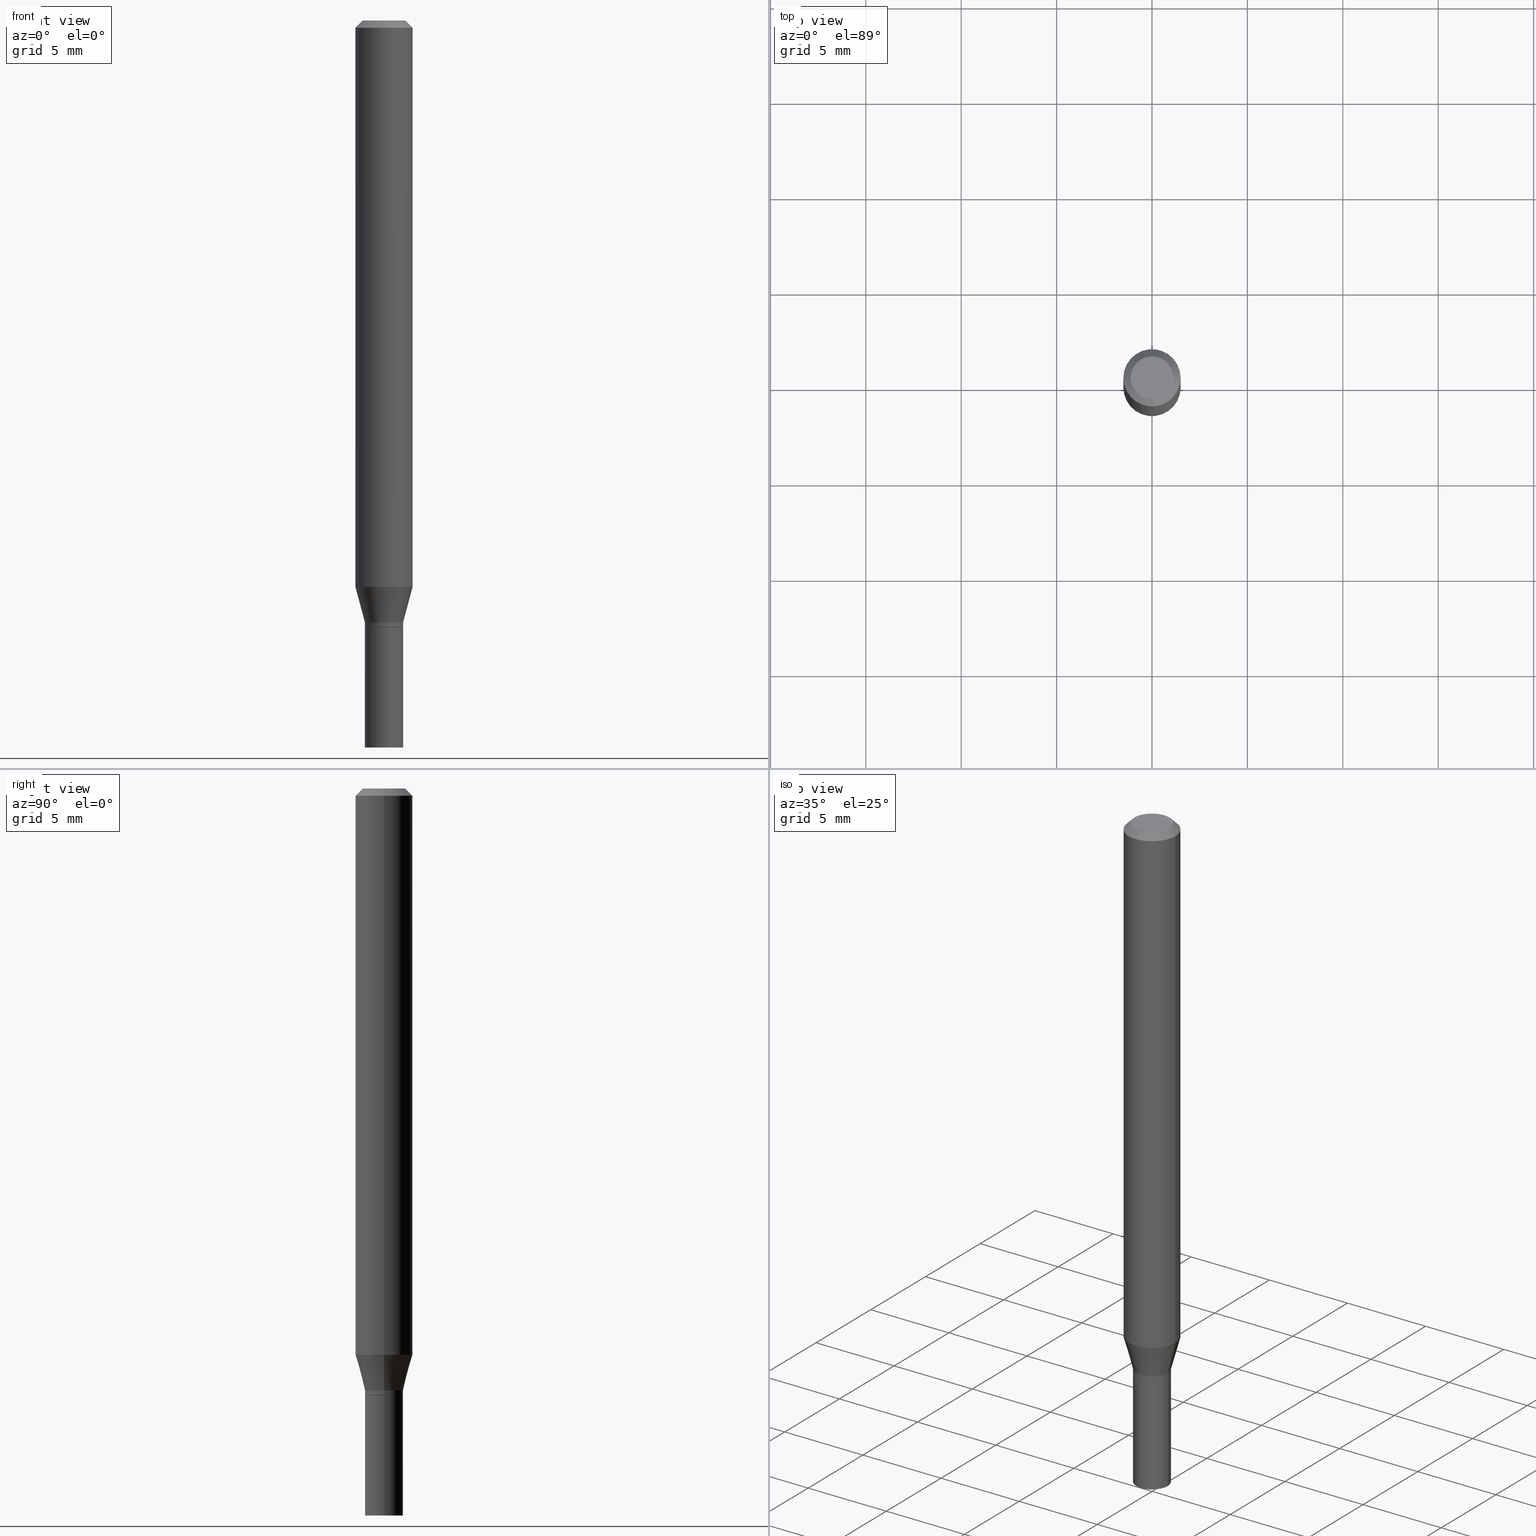
[diagram: canonical four-view strip — front | top / right | iso, engineering-drawing reading convention]
A machine part, canonical four-view strip (front | top / right | iso — engineering-drawing reading convention). The complete STEP part file that produces these views, byte-faithful:
ISO-10303-21;
HEADER;
FILE_DESCRIPTION (( 'STEP AP203' ),
    '1' );
FILE_NAME ('40113.STEP',
    '2024-03-12T19:08:55',
    ( '' ),
    ( '' ),
    'SwSTEP 2.0',
    'SolidWorks 2023',
    '' );
FILE_SCHEMA (( 'CONFIG_CONTROL_DESIGN' ));
ENDSEC;

DATA;
#1 = CARTESIAN_POINT ( 'NONE',  ( -8.641182519006289553E-45, 1.233731848647591164E-30, 3.533548453838711334E-16 ) ) ;
#2 = MANIFOLD_SOLID_BREP ( 'Body-Move/Copy2[2]', #460 ) ;
#3 = AXIS2_PLACEMENT_3D ( 'NONE', #84, #232, #154 ) ;
#4 = DIRECTION ( 'NONE',  ( -2.445468806185136597E-29, 3.491481338843145583E-15, 1.000000000000000000 ) ) ;
#5 = DIRECTION ( 'NONE',  ( -0.7071067811865396902, 2.468850131082174625E-15, -0.7071067811865553443 ) ) ;
#6 = ORIENTED_EDGE ( 'NONE', *, *, #67, .F. ) ;
#7 = CARTESIAN_POINT ( 'NONE',  ( 3.668203209277705088E-31, -5.237222008264718399E-17, -0.01499999999999999944 ) ) ;
#8 = EDGE_LOOP ( 'NONE', ( #143, #316 ) ) ;
#9 = LINE ( 'NONE', #157, #87 ) ;
#10 = CONICAL_SURFACE ( 'NONE', #176, 0.03934999999999992670, 0.2617993877991502960 ) ;
#11 = CARTESIAN_POINT ( 'NONE',  ( 0.03934999999999992670, -4.611199404210140965E-15, -1.241999999999999993 ) ) ;
#12 = CARTESIAN_POINT ( 'NONE',  ( -0.03935000000000000303, -4.524679755726570119E-15, -1.252000000000000224 ) ) ;
#13 = EDGE_CURVE ( 'NONE', #134, #384, #282, .T. ) ;
#14 = DIRECTION ( 'NONE',  ( 1.000000000000000000, -6.982962677686269077E-15, 0.000000000000000000 ) ) ;
#15 = CYLINDRICAL_SURFACE ( 'NONE', #352, 0.03935000000000000303 ) ;
#16 = DIRECTION ( 'NONE',  ( -2.445468806185136877E-29, 3.491481338843145188E-15, 1.000000000000000000 ) ) ;
#17 = EDGE_CURVE ( 'NONE', #24, #422, #153, .T. ) ;
#18 = CIRCLE ( 'NONE', #454, 0.04404999999999999888 ) ;
#19 = ORIENTED_EDGE ( 'NONE', *, *, #370, .F. ) ;
#20 = DIRECTION ( 'NONE',  ( 0.000000000000000000, 0.000000000000000000, 1.000000000000000000 ) ) ;
#21 = ADVANCED_FACE ( 'NONE', ( #45 ), #217, .T. ) ;
#22 = ADVANCED_FACE ( 'NONE', ( #288 ), #393, .F. ) ;
#23 = PERSON_AND_ORGANIZATION_ROLE ( 'creator' ) ;
#24 = VERTEX_POINT ( 'NONE', #181 ) ;
#25 = ORIENTED_EDGE ( 'NONE', *, *, #103, .F. ) ;
#26 = MECHANICAL_CONTEXT ( 'NONE', #420, 'mechanical' ) ;
#27 = ORIENTED_EDGE ( 'NONE', *, *, #399, .T. ) ;
#28 = COORDINATED_UNIVERSAL_TIME_OFFSET ( 5, 0, .BEHIND. ) ;
#29 = SECURITY_CLASSIFICATION ( '', '', #277 ) ;
#30 = ADVANCED_FACE ( 'NONE', ( #433 ), #279, .T. ) ;
#31 = VERTEX_POINT ( 'NONE', #436 ) ;
#32 = ORIENTED_EDGE ( 'NONE', *, *, #314, .T. ) ;
#33 = PRODUCT ( '40113', '40113', '', ( #26 ) ) ;
#34 = DIRECTION ( 'NONE',  ( 2.445468806185136597E-29, -3.491481338843145583E-15, -1.000000000000000000 ) ) ;
#35 = CIRCLE ( 'NONE', #102, 0.05904999999999999832 ) ;
#36 = LINE ( 'NONE', #183, #205 ) ;
#37 = CARTESIAN_POINT ( 'NONE',  ( 3.061726945343791391E-29, -4.371334636231619274E-15, -1.252000000000000224 ) ) ;
#38 = SHAPE_DEFINITION_REPRESENTATION ( #428, #418 ) ;
#39 = DIRECTION ( 'NONE',  ( 1.000000000000000000, -6.982962677686270655E-15, 0.000000000000000000 ) ) ;
#40 = CARTESIAN_POINT ( 'NONE',  ( -0.05905000000000001914, 3.599717260347269535E-16, -0.01499999999999999944 ) ) ;
#41 = AXIS2_PLACEMENT_3D ( 'NONE', #447, #403, #14 ) ;
#42 = EDGE_CURVE ( 'NONE', #105, #392, #342, .T. ) ;
#43 = EDGE_CURVE ( 'NONE', #97, #384, #431, .T. ) ;
#44 = ADVANCED_FACE ( 'NONE', ( #363 ), #361, .F. ) ;
#45 = FACE_OUTER_BOUND ( 'NONE', #300, .T. ) ;
#46 = DIRECTION ( 'NONE',  ( 1.000000000000000000, -6.982962677686265922E-15, 4.876176775795935793E-29 ) ) ;
#47 = CARTESIAN_POINT ( 'NONE',  ( 3.037272257281939846E-29, -4.336419822843186836E-15, -1.241999999999999993 ) ) ;
#48 = ORIENTED_EDGE ( 'NONE', *, *, #341, .F. ) ;
#49 = LINE ( 'NONE', #40, #71 ) ;
#50 = CARTESIAN_POINT ( 'NONE',  ( -0.03935000000000000303, -4.524679755726570119E-15, -1.500000000000000222 ) ) ;
#51 = APPROVAL ( #64, 'UNSPECIFIED' ) ;
#52 = CARTESIAN_POINT ( 'NONE',  ( -0.03934999999999992670, -3.858483497209341928E-15, -1.241999999999999993 ) ) ;
#53 = VECTOR ( 'NONE', #331, 39.37007874015748143 ) ;
#54 = DIRECTION ( 'NONE',  ( 1.000000000000000000, -6.982962677686265133E-15, 4.876176775795935232E-29 ) ) ;
#55 = APPROVAL_PERSON_ORGANIZATION ( #310, #132, #387 ) ;
#56 = ORIENTED_EDGE ( 'NONE', *, *, #373, .F. ) ;
#57 = CARTESIAN_POINT ( 'NONE',  ( 0.000000000000000000, 0.000000000000000000, 0.000000000000000000 ) ) ;
#58 = DIRECTION ( 'NONE',  ( 1.000000000000000000, -6.982962677686258033E-15, 0.000000000000000000 ) ) ;
#59 =( NAMED_UNIT ( * ) SI_UNIT ( $, .STERADIAN. ) SOLID_ANGLE_UNIT ( ) );
#60 = COORDINATED_UNIVERSAL_TIME_OFFSET ( 5, 0, .BEHIND. ) ;
#61 = EDGE_CURVE ( 'NONE', #384, #97, #319, .T. ) ;
#62 = CIRCLE ( 'NONE', #246, 0.05905000000000001914 ) ;
#63 = ORIENTED_EDGE ( 'NONE', *, *, #329, .T. ) ;
#64 = APPROVAL_STATUS ( 'not_yet_approved' ) ;
#65 = EDGE_LOOP ( 'NONE', ( #177, #427, #237, #208 ) ) ;
#66 = PERSON_AND_ORGANIZATION ( #192, #432 ) ;
#67 = EDGE_CURVE ( 'NONE', #278, #376, #394, .T. ) ;
#68 = EDGE_LOOP ( 'NONE', ( #140, #174, #100, #421 ) ) ;
#69 = DATE_AND_TIME ( #169, #386 ) ;
#70 = CC_DESIGN_PERSON_AND_ORGANIZATION_ASSIGNMENT ( #449, #23, ( #326 ) ) ;
#71 = VECTOR ( 'NONE', #5, 39.37007874015748143 ) ;
#72 = CC_DESIGN_PERSON_AND_ORGANIZATION_ASSIGNMENT ( #129, #385, ( #326 ) ) ;
#73 = CARTESIAN_POINT ( 'NONE',  ( 3.061726945343791391E-29, -4.371334636231619274E-15, -1.252000000000000224 ) ) ;
#74 = DIRECTION ( 'NONE',  ( -2.445468806185136597E-29, 3.491481338843145583E-15, 1.000000000000000000 ) ) ;
#75 = AXIS2_PLACEMENT_3D ( 'NONE', #360, #223, #327 ) ;
#76 = DIRECTION ( 'NONE',  ( -2.445468806185136597E-29, 3.491481338843145583E-15, 1.000000000000000000 ) ) ;
#77 = DIRECTION ( 'NONE',  ( -2.445468806185136597E-29, 3.491481338843145583E-15, 1.000000000000000000 ) ) ;
#78 = DIRECTION ( 'NONE',  ( -1.000000000000000000, 6.982962677686266711E-15, 0.000000000000000000 ) ) ;
#79 = FACE_OUTER_BOUND ( 'NONE', #390, .T. ) ;
#80 = AXIS2_PLACEMENT_3D ( 'NONE', #247, #76, #324 ) ;
#81 = CARTESIAN_POINT ( 'NONE',  ( -0.05905000000000002608, -1.646471236356701803E-15, -0.01499999999999999944 ) ) ;
#82 = DIRECTION ( 'NONE',  ( 1.000000000000000000, -6.982962677686266711E-15, 4.876176775795936353E-29 ) ) ;
#83 = CARTESIAN_POINT ( 'NONE',  ( 0.03935000000000000303, -5.512001589631673094E-15, -1.500000000000000222 ) ) ;
#84 = CARTESIAN_POINT ( 'NONE',  ( 3.061726945343791391E-29, -4.371334636231619274E-15, -1.252000000000000224 ) ) ;
#85 = FACE_OUTER_BOUND ( 'NONE', #68, .T. ) ;
#86 = DIRECTION ( 'NONE',  ( 1.000000000000000000, -6.982962677686258033E-15, 0.000000000000000000 ) ) ;
#87 = VECTOR ( 'NONE', #334, 39.37007874015748143 ) ;
#88 = DIRECTION ( 'NONE',  ( -2.445468806185136597E-29, 3.491481338843145583E-15, 1.000000000000000000 ) ) ;
#89 = DATE_TIME_ROLE ( 'classification_date' ) ;
#90 = ORIENTED_EDGE ( 'NONE', *, *, #284, .T. ) ;
#91 = APPROVAL_ROLE ( '' ) ;
#92 = ADVANCED_FACE ( 'NONE', ( #322 ), #170, .T. ) ;
#93 = EDGE_CURVE ( 'NONE', #422, #278, #402, .T. ) ;
#94 = EDGE_CURVE ( 'NONE', #455, #121, #383, .T. ) ;
#95 = COORDINATED_UNIVERSAL_TIME_OFFSET ( 5, 0, .BEHIND. ) ;
#96 = AXIS2_PLACEMENT_3D ( 'NONE', #123, #328, #406 ) ;
#97 = VERTEX_POINT ( 'NONE', #107 ) ;
#98 = PERSON_AND_ORGANIZATION ( #192, #432 ) ;
#99 = ADVANCED_FACE ( 'NONE', ( #400 ), #187, .F. ) ;
#100 = ORIENTED_EDGE ( 'NONE', *, *, #17, .T. ) ;
#101 = CALENDAR_DATE ( 2024, 12, 3 ) ;
#102 = AXIS2_PLACEMENT_3D ( 'NONE', #299, #444, #378 ) ;
#103 = EDGE_CURVE ( 'NONE', #315, #392, #36, .T. ) ;
#104 = EDGE_CURVE ( 'NONE', #31, #248, #461, .T. ) ;
#105 = VERTEX_POINT ( 'NONE', #81 ) ;
#106 = DIRECTION ( 'NONE',  ( -2.445468806185136597E-29, 3.491481338843145583E-15, 1.000000000000000000 ) ) ;
#107 = CARTESIAN_POINT ( 'NONE',  ( 0.03935000000000000303, -4.646114217598574191E-15, -1.252000000000000224 ) ) ;
#108 = AXIS2_PLACEMENT_3D ( 'NONE', #261, #254, #356 ) ;
#109 = CC_DESIGN_APPROVAL ( #132, ( #326 ) ) ;
#110 = ORIENTED_EDGE ( 'NONE', *, *, #104, .F. ) ;
#111 = DIRECTION ( 'NONE',  ( 2.438088387897960049E-29, -3.491481338843145188E-15, -1.000000000000000000 ) ) ;
#112 = FACE_OUTER_BOUND ( 'NONE', #309, .T. ) ;
#113 = DIRECTION ( 'NONE',  ( -0.2588190451025216832, 5.211531920934551831E-15, 0.9659258262890679791 ) ) ;
#114 = VECTOR ( 'NONE', #466, 39.37007874015748143 ) ;
#115 = LINE ( 'NONE', #262, #411 ) ;
#116 = AXIS2_PLACEMENT_3D ( 'NONE', #463, #34, #78 ) ;
#117 = EDGE_CURVE ( 'NONE', #392, #105, #62, .T. ) ;
#118 = LINE ( 'NONE', #293, #53 ) ;
#119 = EDGE_CURVE ( 'NONE', #422, #315, #163, .T. ) ;
#120 = CYLINDRICAL_SURFACE ( 'NONE', #108, 0.03934999999999992670 ) ;
#121 = VERTEX_POINT ( 'NONE', #229 ) ;
#122 = DIRECTION ( 'NONE',  ( -0.7071067811865656694, 7.493145998870420424E-15, 0.7071067811865294761 ) ) ;
#123 = CARTESIAN_POINT ( 'NONE',  ( 2.857477964771687293E-29, -4.079721223563434330E-15, -1.168478599090893244 ) ) ;
#124 = DIRECTION ( 'NONE',  ( -2.445468806185136597E-29, 3.491481338843145583E-15, 1.000000000000000000 ) ) ;
#125 = VECTOR ( 'NONE', #409, 39.37007874015748143 ) ;
#126 = DIRECTION ( 'NONE',  ( 1.000000000000000000, -6.982962677686266711E-15, 4.876176775795936353E-29 ) ) ;
#127 = LOCAL_TIME ( 15, 8, 55.00000000000000000, #60 ) ;
#128 =( NAMED_UNIT ( * ) PLANE_ANGLE_UNIT ( ) SI_UNIT ( $, .RADIAN. ) );
#129 = PERSON_AND_ORGANIZATION ( #192, #432 ) ;
#130 = ORIENTED_EDGE ( 'NONE', *, *, #156, .F. ) ;
#131 = APPLICATION_PROTOCOL_DEFINITION ( 'international standard', 'config_control_design', 1994, #420 ) ;
#132 = APPROVAL ( #351, 'UNSPECIFIED' ) ;
#133 = LOCAL_TIME ( 15, 8, 55.00000000000000000, #95 ) ;
#134 = VERTEX_POINT ( 'NONE', #50 ) ;
#135 = ORIENTED_EDGE ( 'NONE', *, *, #119, .F. ) ;
#136 = COORDINATED_UNIVERSAL_TIME_OFFSET ( 5, 0, .BEHIND. ) ;
#137 = DATE_AND_TIME ( #171, #127 ) ;
#138 = ADVANCED_FACE ( 'NONE', ( #369 ), #10, .T. ) ;
#139 = ADVANCED_FACE ( 'NONE', ( #255 ), #374, .T. ) ;
#140 = ORIENTED_EDGE ( 'NONE', *, *, #314, .F. ) ;
#141 = AXIS2_PLACEMENT_3D ( 'NONE', #323, #190, #221 ) ;
#142 = LOCAL_TIME ( 15, 8, 55.00000000000000000, #349 ) ;
#143 = ORIENTED_EDGE ( 'NONE', *, *, #43, .T. ) ;
#144 = EDGE_CURVE ( 'NONE', #248, #31, #219, .T. ) ;
#145 = CARTESIAN_POINT ( 'NONE',  ( 3.037272257281939846E-29, -4.336419822843186836E-15, -1.241999999999999993 ) ) ;
#146 = CARTESIAN_POINT ( 'NONE',  ( 0.03934999999999992670, -2.747795813669540294E-16, 1.918775561275696870E-30 ) ) ;
#147 = EDGE_CURVE ( 'NONE', #244, #97, #408, .T. ) ;
#148 = EDGE_CURVE ( 'NONE', #315, #376, #35, .T. ) ;
#149 = DIRECTION ( 'NONE',  ( 1.000000000000000000, -6.982962677686269077E-15, 0.000000000000000000 ) ) ;
#150 = CC_DESIGN_SECURITY_CLASSIFICATION ( #29, ( #326 ) ) ;
#151 = DIRECTION ( 'NONE',  ( -2.445468806185136597E-29, 3.491481338843145583E-15, 1.000000000000000000 ) ) ;
#152 = CARTESIAN_POINT ( 'NONE',  ( 0.04404999999999999888, -3.798447818264455642E-16, 3.533548453838735986E-16 ) ) ;
#153 = LINE ( 'NONE', #146, #158 ) ;
#154 = DIRECTION ( 'NONE',  ( 1.000000000000000000, -6.982962677686256455E-15, 0.000000000000000000 ) ) ;
#155 = CARTESIAN_POINT ( 'NONE',  ( -0.03934999999999992670, -4.089990329040599164E-15, -1.251500000000000279 ) ) ;
#156 = EDGE_CURVE ( 'NONE', #376, #315, #274, .T. ) ;
#157 = CARTESIAN_POINT ( 'NONE',  ( -0.03934999999999992670, 2.795985665215989023E-16, -1.935600958015301788E-30 ) ) ;
#158 = VECTOR ( 'NONE', #434, 39.37007874015748143 ) ;
#159 = AXIS2_PLACEMENT_3D ( 'NONE', #273, #20, #338 ) ;
#160 = ORIENTED_EDGE ( 'NONE', *, *, #147, .T. ) ;
#161 = DIRECTION ( 'NONE',  ( -1.000000000000000000, 6.982962677686266711E-15, 0.000000000000000000 ) ) ;
#162 = CARTESIAN_POINT ( 'NONE',  ( -0.05904999999999999832, -3.660145738097095626E-15, -1.168478599090893244 ) ) ;
#163 = LINE ( 'NONE', #11, #182 ) ;
#164 = EDGE_LOOP ( 'NONE', ( #458, #199, #348, #25 ) ) ;
#165 = CARTESIAN_POINT ( 'NONE',  ( -0.05905000000000000526, 4.195754854663391971E-16, -2.904631170795522242E-30 ) ) ;
#166 = EDGE_CURVE ( 'NONE', #244, #134, #325, .T. ) ;
#167 = DIMENSIONAL_EXPONENTS ( 1.000000000000000000, 0.000000000000000000, 0.000000000000000000, 0.000000000000000000, 0.000000000000000000, 0.000000000000000000, 0.000000000000000000 ) ;
#168 = CARTESIAN_POINT ( 'NONE',  ( 3.060504210940699150E-29, -4.369588895562197771E-15, -1.251500000000000279 ) ) ;
#169 = CALENDAR_DATE ( 2024, 12, 3 ) ;
#170 = CONICAL_SURFACE ( 'NONE', #116, 0.05905000000000001914, 0.7853981633974372878 ) ;
#171 = CALENDAR_DATE ( 2024, 12, 3 ) ;
#172 = ORIENTED_EDGE ( 'NONE', *, *, #103, .T. ) ;
#173 = ORIENTED_EDGE ( 'NONE', *, *, #42, .T. ) ;
#174 = ORIENTED_EDGE ( 'NONE', *, *, #373, .T. ) ;
#175 = CALENDAR_DATE ( 2024, 12, 3 ) ;
#176 = AXIS2_PLACEMENT_3D ( 'NONE', #47, #335, #236 ) ;
#177 = ORIENTED_EDGE ( 'NONE', *, *, #144, .T. ) ;
#178 = LENGTH_MEASURE_WITH_UNIT ( LENGTH_MEASURE( 0.02539999999999999897 ), #292 );
#179 = ORIENTED_EDGE ( 'NONE', *, *, #329, .F. ) ;
#180 = VERTEX_POINT ( 'NONE', #155 ) ;
#181 = CARTESIAN_POINT ( 'NONE',  ( 0.03934999999999992670, -4.644368476929151899E-15, -1.251500000000000279 ) ) ;
#182 = VECTOR ( 'NONE', #259, 39.37007874015748143 ) ;
#183 = CARTESIAN_POINT ( 'NONE',  ( 0.05905000000000000526, -4.123439461173741313E-16, 2.879382386107500571E-30 ) ) ;
#184 = CC_DESIGN_DATE_AND_TIME_ASSIGNMENT ( #344, #89, ( #29 ) ) ;
#185 = DIRECTION ( 'NONE',  ( 1.000000000000000000, -6.982962677686267499E-15, 4.876176775795936353E-29 ) ) ;
#186 = EDGE_LOOP ( 'NONE', ( #179, #295, #308, #173 ) ) ;
#187 = PLANE ( 'NONE',  #75 ) ;
#188 = AXIS2_PLACEMENT_3D ( 'NONE', #220, #4, #358 ) ;
#189 = CARTESIAN_POINT ( 'NONE',  ( 3.060504210940699150E-29, -4.369588895562197771E-15, -1.251500000000000279 ) ) ;
#190 = DIRECTION ( 'NONE',  ( -2.438088387897960049E-29, 3.491481338843145188E-15, 1.000000000000000000 ) ) ;
#191 = CYLINDRICAL_SURFACE ( 'NONE', #287, 0.05905000000000000526 ) ;
#192 = PERSON ( 'UNSPECIFIED', 'UNSPECIFIED', 'UNSPECIFIED', ('UNSPECIFIED'), ('UNSPECIFIED'), ('UNSPECIFIED') ) ;
#193 = DIRECTION ( 'NONE',  ( -2.445468806185136597E-29, 3.491481338843145583E-15, 1.000000000000000000 ) ) ;
#194 = DIRECTION ( 'NONE',  ( 1.000000000000000000, -6.982962677686265922E-15, 4.819687581474398999E-29 ) ) ;
#195 = CARTESIAN_POINT ( 'NONE',  ( 0.03935000000000000303, -2.747795813669546211E-16, 1.918775561275701074E-30 ) ) ;
#196 = CARTESIAN_POINT ( 'NONE',  ( 3.037272257281939846E-29, -4.336419822843186836E-15, -1.241999999999999993 ) ) ;
#197 = AXIS2_PLACEMENT_3D ( 'NONE', #202, #414, #161 ) ;
#198 = DIRECTION ( 'NONE',  ( 1.000000000000000000, -6.982962677686256455E-15, 0.000000000000000000 ) ) ;
#199 = ORIENTED_EDGE ( 'NONE', *, *, #370, .T. ) ;
#200 = CARTESIAN_POINT ( 'NONE',  ( 0.05905000000000001914, -4.647161662000214077E-16, -0.01499999999999999944 ) ) ;
#201 = ADVANCED_FACE ( 'NONE', ( #85 ), #268, .T. ) ;
#202 = CARTESIAN_POINT ( 'NONE',  ( 3.668203209277705088E-31, -5.237222008264718399E-17, -0.01499999999999999944 ) ) ;
#203 = CALENDAR_DATE ( 2024, 12, 3 ) ;
#204 = CLOSED_SHELL ( 'NONE', ( #139, #465, #312, #99 ) ) ;
#205 = VECTOR ( 'NONE', #283, 39.37007874015748143 ) ;
#206 = CC_DESIGN_APPROVAL ( #51, ( #29 ) ) ;
#207 = EDGE_CURVE ( 'NONE', #24, #180, #391, .T. ) ;
#208 = ORIENTED_EDGE ( 'NONE', *, *, #238, .F. ) ;
#209 = APPROVAL_DATE_TIME ( #137, #132 ) ;
#210 = ADVANCED_FACE ( 'NONE', ( #439 ), #311, .T. ) ;
#211 = APPROVAL_ROLE ( '' ) ;
#212 = ORIENTED_EDGE ( 'NONE', *, *, #43, .F. ) ;
#213 = APPROVAL_DATE_TIME ( #389, #51 ) ;
#214 = CIRCLE ( 'NONE', #305, 0.03934999999999992670 ) ;
#215 = ORIENTED_EDGE ( 'NONE', *, *, #17, .F. ) ;
#216 = ORIENTED_EDGE ( 'NONE', *, *, #61, .F. ) ;
#217 = CYLINDRICAL_SURFACE ( 'NONE', #359, 0.05905000000000000526 ) ;
#218 = DIRECTION ( 'NONE',  ( 1.000000000000000000, -6.982962677686265922E-15, 4.819687581474398999E-29 ) ) ;
#219 = CIRCLE ( 'NONE', #452, 0.03885000000000000259 ) ;
#220 = CARTESIAN_POINT ( 'NONE',  ( 3.061726945343791391E-29, -4.371334636231619274E-15, -1.252000000000000224 ) ) ;
#221 = DIRECTION ( 'NONE',  ( 1.000000000000000000, -6.982962677686265922E-15, 4.876176775795935793E-29 ) ) ;
#222 = DIRECTION ( 'NONE',  ( -2.445468806185136597E-29, 3.491481338843145583E-15, 1.000000000000000000 ) ) ;
#223 = DIRECTION ( 'NONE',  ( 2.438088387897960049E-29, -3.491481338843145188E-15, -1.000000000000000000 ) ) ;
#224 = VECTOR ( 'NONE', #113, 39.37007874015748143 ) ;
#225 = AXIS2_PLACEMENT_3D ( 'NONE', #73, #321, #398 ) ;
#226 = CARTESIAN_POINT ( 'NONE',  ( 3.576687321579069994E-29, -5.368277968210015545E-15, -1.500000000000000222 ) ) ;
#227 = CIRCLE ( 'NONE', #320, 0.03934999999999992670 ) ;
#228 = PRODUCT_DEFINITION ( 'UNKNOWN', '', #326, #264 ) ;
#229 = CARTESIAN_POINT ( 'NONE',  ( -0.04404999999999999888, 3.337856159934041534E-16, 3.533548453838689148E-16 ) ) ;
#230 = DIRECTION ( 'NONE',  ( -2.445468806185136597E-29, 3.491481338843145583E-15, 1.000000000000000000 ) ) ;
#231 = DIRECTION ( 'NONE',  ( -2.445468806185136597E-29, 3.491481338843145583E-15, 1.000000000000000000 ) ) ;
#232 = DIRECTION ( 'NONE',  ( -2.445468806185136597E-29, 3.491481338843145583E-15, 1.000000000000000000 ) ) ;
#233 = DIRECTION ( 'NONE',  ( -2.445468806185136597E-29, 3.491481338843145583E-15, 1.000000000000000000 ) ) ;
#234 = FACE_OUTER_BOUND ( 'NONE', #317, .T. ) ;
#235 = CC_DESIGN_APPROVAL ( #423, ( #228 ) ) ;
#236 = DIRECTION ( 'NONE',  ( 1.000000000000000000, -6.982962677686270655E-15, 0.000000000000000000 ) ) ;
#237 = ORIENTED_EDGE ( 'NONE', *, *, #207, .F. ) ;
#238 = EDGE_CURVE ( 'NONE', #248, #24, #118, .T. ) ;
#239 = APPROVAL_DATE_TIME ( #69, #423 ) ;
#240 = ORIENTED_EDGE ( 'NONE', *, *, #13, .F. ) ;
#241 = DATE_AND_TIME ( #175, #133 ) ;
#242 = AXIS2_PLACEMENT_3D ( 'NONE', #302, #88, #126 ) ;
#243 = APPLICATION_CONTEXT ( 'configuration controlled 3d designs of mechanical parts and assemblies' ) ;
#244 = VERTEX_POINT ( 'NONE', #83 ) ;
#245 = PERSON_AND_ORGANIZATION ( #192, #432 ) ;
#246 = AXIS2_PLACEMENT_3D ( 'NONE', #7, #231, #297 ) ;
#247 = CARTESIAN_POINT ( 'NONE',  ( 3.668203209277705088E-31, -5.237222008264718399E-17, -0.01499999999999999944 ) ) ;
#248 = VERTEX_POINT ( 'NONE', #372 ) ;
#249 = AXIS2_PLACEMENT_3D ( 'NONE', #263, #233, #54 ) ;
#250 = AXIS2_PLACEMENT_3D ( 'NONE', #258, #440, #301 ) ;
#251 = CARTESIAN_POINT ( 'NONE',  ( 0.000000000000000000, 0.000000000000000000, 0.000000000000000000 ) ) ;
#252 = CARTESIAN_POINT ( 'NONE',  ( -0.03934999999999992670, -4.056821256321588230E-15, -1.241999999999999993 ) ) ;
#253 = CARTESIAN_POINT ( 'NONE',  ( 0.05904999999999999832, -4.492065169680809250E-15, -1.168478599090893244 ) ) ;
#254 = DIRECTION ( 'NONE',  ( -2.445468806185136597E-29, 3.491481338843145583E-15, 1.000000000000000000 ) ) ;
#255 = FACE_OUTER_BOUND ( 'NONE', #285, .T. ) ;
#256 = AXIS2_PLACEMENT_3D ( 'NONE', #286, #365, #430 ) ;
#257 =( GEOMETRIC_REPRESENTATION_CONTEXT ( 3 ) GLOBAL_UNCERTAINTY_ASSIGNED_CONTEXT ( ( #362 ) ) GLOBAL_UNIT_ASSIGNED_CONTEXT ( ( #270, #128, #59 ) ) REPRESENTATION_CONTEXT ( 'NONE', 'WORKASPACE' ) );
#258 = CARTESIAN_POINT ( 'NONE',  ( 3.037272257281939846E-29, -4.336419822843186836E-15, -1.241999999999999993 ) ) ;
#259 = DIRECTION ( 'NONE',  ( 0.2588190451025216832, 1.565188264969619798E-15, 0.9659258262890679791 ) ) ;
#260 = CARTESIAN_POINT ( 'NONE',  ( -8.641182519006289553E-45, 1.233731848647591164E-30, 3.533548453838711334E-16 ) ) ;
#261 = CARTESIAN_POINT ( 'NONE',  ( 0.000000000000000000, 0.000000000000000000, 0.000000000000000000 ) ) ;
#262 = CARTESIAN_POINT ( 'NONE',  ( 0.05905000000000001914, -4.574846268510562433E-16, -0.01499999999999999944 ) ) ;
#263 = CARTESIAN_POINT ( 'NONE',  ( 0.000000000000000000, 0.000000000000000000, 0.000000000000000000 ) ) ;
#264 = DESIGN_CONTEXT ( 'detailed design', #243, 'design' ) ;
#265 = ORIENTED_EDGE ( 'NONE', *, *, #148, .F. ) ;
#266 = FACE_OUTER_BOUND ( 'NONE', #380, .T. ) ;
#267 = AXIS2_PLACEMENT_3D ( 'NONE', #168, #441, #58 ) ;
#268 = CYLINDRICAL_SURFACE ( 'NONE', #249, 0.03934999999999992670 ) ;
#269 = ORIENTED_EDGE ( 'NONE', *, *, #67, .T. ) ;
#270 =( CONVERSION_BASED_UNIT ( 'INCH', #178 ) LENGTH_UNIT ( ) NAMED_UNIT ( #167 ) );
#271 = ORIENTED_EDGE ( 'NONE', *, *, #42, .F. ) ;
#272 = ORIENTED_EDGE ( 'NONE', *, *, #339, .T. ) ;
#273 = CARTESIAN_POINT ( 'NONE',  ( 0.000000000000000000, 0.000000000000000000, 0.000000000000000000 ) ) ;
#274 = CIRCLE ( 'NONE', #96, 0.05904999999999999832 ) ;
#275 = EDGE_LOOP ( 'NONE', ( #355, #32, #459, #215 ) ) ;
#276 = ADVANCED_FACE ( 'NONE', ( #337 ), #120, .T. ) ;
#277 = SECURITY_CLASSIFICATION_LEVEL ( 'unclassified' ) ;
#278 = VERTEX_POINT ( 'NONE', #52 ) ;
#279 = CONICAL_SURFACE ( 'NONE', #225, 0.03885000000000000259, 0.7853981633974739252 ) ;
#280 = AXIS2_PLACEMENT_3D ( 'NONE', #226, #367, #46 ) ;
#281 = ORIENTED_EDGE ( 'NONE', *, *, #117, .T. ) ;
#282 = LINE ( 'NONE', #429, #114 ) ;
#283 = DIRECTION ( 'NONE',  ( -2.445468806185136877E-29, 3.491481338843145188E-15, 1.000000000000000000 ) ) ;
#284 = EDGE_CURVE ( 'NONE', #134, #244, #366, .T. ) ;
#285 = EDGE_LOOP ( 'NONE', ( #388, #457, #212, #343 ) ) ;
#286 = CARTESIAN_POINT ( 'NONE',  ( 3.061726945343791391E-29, -4.371334636231619274E-15, -1.252000000000000224 ) ) ;
#287 = AXIS2_PLACEMENT_3D ( 'NONE', #57, #446, #364 ) ;
#288 = FACE_OUTER_BOUND ( 'NONE', #450, .T. ) ;
#289 = CC_DESIGN_PERSON_AND_ORGANIZATION_ASSIGNMENT ( #245, #346, ( #33 ) ) ;
#290 = DIRECTION ( 'NONE',  ( 1.000000000000000000, -6.982962677686269077E-15, 0.000000000000000000 ) ) ;
#291 = DIRECTION ( 'NONE',  ( -1.000000000000000000, 6.982962677686265922E-15, -4.876176775795935793E-29 ) ) ;
#292 =( LENGTH_UNIT ( ) NAMED_UNIT ( * ) SI_UNIT ( $, .METRE. ) );
#293 = CARTESIAN_POINT ( 'NONE',  ( 0.03885000000000000259, -4.642622736259730395E-15, -1.252000000000000224 ) ) ;
#294 = APPROVAL_PERSON_ORGANIZATION ( #66, #423, #91 ) ;
#295 = ORIENTED_EDGE ( 'NONE', *, *, #399, .F. ) ;
#296 = LINE ( 'NONE', #165, #125 ) ;
#297 = DIRECTION ( 'NONE',  ( 1.000000000000000000, -6.982962677686266711E-15, 0.000000000000000000 ) ) ;
#298 = DIRECTION ( 'NONE',  ( 1.000000000000000000, -6.982962677686270655E-15, 0.000000000000000000 ) ) ;
#299 = CARTESIAN_POINT ( 'NONE',  ( 2.857477964771687293E-29, -4.079721223563434330E-15, -1.168478599090893244 ) ) ;
#300 = EDGE_LOOP ( 'NONE', ( #19, #453, #172, #271 ) ) ;
#301 = DIRECTION ( 'NONE',  ( 1.000000000000000000, -6.982962677686270655E-15, 0.000000000000000000 ) ) ;
#302 = CARTESIAN_POINT ( 'NONE',  ( 0.000000000000000000, 0.000000000000000000, 0.000000000000000000 ) ) ;
#303 = EDGE_CURVE ( 'NONE', #31, #180, #330, .T. ) ;
#304 = APPROVAL_STATUS ( 'not_yet_approved' ) ;
#305 = AXIS2_PLACEMENT_3D ( 'NONE', #196, #230, #298 ) ;
#306 = PERSON_AND_ORGANIZATION ( #192, #432 ) ;
#307 = PERSON_AND_ORGANIZATION ( #192, #432 ) ;
#308 = ORIENTED_EDGE ( 'NONE', *, *, #341, .T. ) ;
#309 = EDGE_LOOP ( 'NONE', ( #368, #442 ) ) ;
#310 = PERSON_AND_ORGANIZATION ( #192, #432 ) ;
#311 = CONICAL_SURFACE ( 'NONE', #197, 0.05905000000000001914, 0.7853981633974372878 ) ;
#312 = ADVANCED_FACE ( 'NONE', ( #79 ), #15, .T. ) ;
#313 = APPROVAL_PERSON_ORGANIZATION ( #306, #51, #211 ) ;
#314 = EDGE_CURVE ( 'NONE', #180, #278, #9, .T. ) ;
#315 = VERTEX_POINT ( 'NONE', #253 ) ;
#316 = ORIENTED_EDGE ( 'NONE', *, *, #61, .T. ) ;
#317 = EDGE_LOOP ( 'NONE', ( #416, #412, #347, #56 ) ) ;
#318 = ORIENTED_EDGE ( 'NONE', *, *, #93, .T. ) ;
#319 = CIRCLE ( 'NONE', #188, 0.03935000000000000303 ) ;
#320 = AXIS2_PLACEMENT_3D ( 'NONE', #189, #222, #86 ) ;
#321 = DIRECTION ( 'NONE',  ( -2.445468806185136597E-29, 3.491481338843145583E-15, 1.000000000000000000 ) ) ;
#322 = FACE_OUTER_BOUND ( 'NONE', #186, .T. ) ;
#323 = CARTESIAN_POINT ( 'NONE',  ( 3.061726945343791391E-29, -4.371334636231619274E-15, -1.252000000000000224 ) ) ;
#324 = DIRECTION ( 'NONE',  ( 1.000000000000000000, -6.982962677686266711E-15, 0.000000000000000000 ) ) ;
#325 = CIRCLE ( 'NONE', #41, 0.03935000000000000303 ) ;
#326 = PRODUCT_DEFINITION_FORMATION_WITH_SPECIFIED_SOURCE ( 'ANY', '', #33, .NOT_KNOWN. ) ;
#327 = DIRECTION ( 'NONE',  ( -1.000000000000000000, 6.982962677686265922E-15, -4.876176775795935793E-29 ) ) ;
#328 = DIRECTION ( 'NONE',  ( -2.445468806185136597E-29, 3.491481338843145583E-15, 1.000000000000000000 ) ) ;
#329 = EDGE_CURVE ( 'NONE', #455, #392, #115, .T. ) ;
#330 = LINE ( 'NONE', #336, #425 ) ;
#331 = DIRECTION ( 'NONE',  ( 0.7071067811865656694, -2.468850131082446387E-15, 0.7071067811865294761 ) ) ;
#332 = VECTOR ( 'NONE', #16, 39.37007874015748143 ) ;
#333 = ORIENTED_EDGE ( 'NONE', *, *, #94, .T. ) ;
#334 = DIRECTION ( 'NONE',  ( -2.445468806185136877E-29, 3.491481338843145188E-15, 1.000000000000000000 ) ) ;
#335 = DIRECTION ( 'NONE',  ( -2.445468806185136597E-29, 3.491481338843145583E-15, 1.000000000000000000 ) ) ;
#336 = CARTESIAN_POINT ( 'NONE',  ( -0.03885000000000000259, -4.095288783388819989E-15, -1.252000000000000224 ) ) ;
#337 = FACE_OUTER_BOUND ( 'NONE', #275, .T. ) ;
#338 = DIRECTION ( 'NONE',  ( 1.000000000000000000, 0.000000000000000000, 0.000000000000000000 ) ) ;
#339 = EDGE_CURVE ( 'NONE', #278, #422, #214, .T. ) ;
#340 = CC_DESIGN_DATE_AND_TIME_ASSIGNMENT ( #241, #419, ( #228 ) ) ;
#341 = EDGE_CURVE ( 'NONE', #121, #105, #49, .T. ) ;
#342 = CIRCLE ( 'NONE', #80, 0.05905000000000001914 ) ;
#343 = ORIENTED_EDGE ( 'NONE', *, *, #147, .F. ) ;
#344 = DATE_AND_TIME ( #203, #426 ) ;
#345 = ORIENTED_EDGE ( 'NONE', *, *, #94, .F. ) ;
#346 = PERSON_AND_ORGANIZATION_ROLE ( 'design_owner' ) ;
#347 = ORIENTED_EDGE ( 'NONE', *, *, #238, .T. ) ;
#348 = ORIENTED_EDGE ( 'NONE', *, *, #117, .F. ) ;
#349 = COORDINATED_UNIVERSAL_TIME_OFFSET ( 5, 0, .BEHIND. ) ;
#350 = ORIENTED_EDGE ( 'NONE', *, *, #144, .F. ) ;
#351 = APPROVAL_STATUS ( 'not_yet_approved' ) ;
#352 = AXIS2_PLACEMENT_3D ( 'NONE', #404, #371, #82 ) ;
#353 = CONICAL_SURFACE ( 'NONE', #250, 0.03934999999999992670, 0.2617993877991502960 ) ;
#354 = EDGE_LOOP ( 'NONE', ( #350, #110 ) ) ;
#355 = ORIENTED_EDGE ( 'NONE', *, *, #207, .T. ) ;
#356 = DIRECTION ( 'NONE',  ( 1.000000000000000000, -6.982962677686265133E-15, 4.876176775795935232E-29 ) ) ;
#357 = ORIENTED_EDGE ( 'NONE', *, *, #119, .T. ) ;
#358 = DIRECTION ( 'NONE',  ( 1.000000000000000000, -6.982962677686269077E-15, 0.000000000000000000 ) ) ;
#359 = AXIS2_PLACEMENT_3D ( 'NONE', #251, #106, #185 ) ;
#360 = CARTESIAN_POINT ( 'NONE',  ( 2.747795813669852388E-16, 0.03934999999999563153, -1.252000000000000446 ) ) ;
#361 = PLANE ( 'NONE',  #141 ) ;
#362 = UNCERTAINTY_MEASURE_WITH_UNIT (LENGTH_MEASURE( 1.000000000000000082E-05 ), #270, 'distance_accuracy_value', 'NONE');
#363 = FACE_OUTER_BOUND ( 'NONE', #354, .T. ) ;
#364 = DIRECTION ( 'NONE',  ( 1.000000000000000000, -6.982962677686267499E-15, 4.876176775795936353E-29 ) ) ;
#365 = DIRECTION ( 'NONE',  ( -2.445468806185136597E-29, 3.491481338843145583E-15, 1.000000000000000000 ) ) ;
#366 = CIRCLE ( 'NONE', #375, 0.03935000000000000303 ) ;
#367 = DIRECTION ( 'NONE',  ( -2.438088387897960049E-29, 3.491481338843145188E-15, 1.000000000000000000 ) ) ;
#368 = ORIENTED_EDGE ( 'NONE', *, *, #166, .F. ) ;
#369 = FACE_OUTER_BOUND ( 'NONE', #379, .T. ) ;
#370 = EDGE_CURVE ( 'NONE', #376, #105, #296, .T. ) ;
#371 = DIRECTION ( 'NONE',  ( -2.445468806185136597E-29, 3.491481338843145583E-15, 1.000000000000000000 ) ) ;
#372 = CARTESIAN_POINT ( 'NONE',  ( 0.03885000000000000259, -4.642622736259730395E-15, -1.252000000000000224 ) ) ;
#373 = EDGE_CURVE ( 'NONE', #180, #24, #227, .T. ) ;
#374 = CYLINDRICAL_SURFACE ( 'NONE', #242, 0.03935000000000000303 ) ;
#375 = AXIS2_PLACEMENT_3D ( 'NONE', #377, #124, #290 ) ;
#376 = VERTEX_POINT ( 'NONE', #162 ) ;
#377 = CARTESIAN_POINT ( 'NONE',  ( 3.668203209277704895E-29, -5.237222008264718177E-15, -1.500000000000000222 ) ) ;
#378 = DIRECTION ( 'NONE',  ( 1.000000000000000000, -6.982962677686273021E-15, 0.000000000000000000 ) ) ;
#379 = EDGE_LOOP ( 'NONE', ( #6, #272, #357, #130 ) ) ;
#380 = EDGE_LOOP ( 'NONE', ( #318, #269, #265, #135 ) ) ;
#381 = PERSON_AND_ORGANIZATION_ROLE ( 'creator' ) ;
#382 = ADVANCED_FACE ( 'NONE', ( #266 ), #353, .T. ) ;
#383 = CIRCLE ( 'NONE', #448, 0.04404999999999999888 ) ;
#384 = VERTEX_POINT ( 'NONE', #12 ) ;
#385 = PERSON_AND_ORGANIZATION_ROLE ( 'design_supplier' ) ;
#386 = LOCAL_TIME ( 15, 8, 55.00000000000000000, #136 ) ;
#387 = APPROVAL_ROLE ( '' ) ;
#388 = ORIENTED_EDGE ( 'NONE', *, *, #166, .T. ) ;
#389 = DATE_AND_TIME ( #101, #142 ) ;
#390 = EDGE_LOOP ( 'NONE', ( #240, #90, #160, #216 ) ) ;
#391 = CIRCLE ( 'NONE', #267, 0.03934999999999992670 ) ;
#392 = VERTEX_POINT ( 'NONE', #200 ) ;
#393 = PLANE ( 'NONE',  #417 ) ;
#394 = LINE ( 'NONE', #252, #224 ) ;
#395 = AXIS2_PLACEMENT_3D ( 'NONE', #37, #77, #149 ) ;
#396 = CARTESIAN_POINT ( 'NONE',  ( 3.075995059520799729E-16, 0.04404999999999999888, 2.287766971589501637E-17 ) ) ;
#397 = CC_DESIGN_PERSON_AND_ORGANIZATION_ASSIGNMENT ( #307, #451, ( #29 ) ) ;
#398 = DIRECTION ( 'NONE',  ( 1.000000000000000000, -6.982962677686256455E-15, 0.000000000000000000 ) ) ;
#399 = EDGE_CURVE ( 'NONE', #121, #455, #18, .T. ) ;
#400 = FACE_OUTER_BOUND ( 'NONE', #8, .T. ) ;
#401 = PLANE ( 'NONE',  #280 ) ;
#402 = CIRCLE ( 'NONE', #424, 0.03934999999999992670 ) ;
#403 = DIRECTION ( 'NONE',  ( -2.445468806185136597E-29, 3.491481338843145583E-15, 1.000000000000000000 ) ) ;
#404 = CARTESIAN_POINT ( 'NONE',  ( 0.000000000000000000, 0.000000000000000000, 0.000000000000000000 ) ) ;
#405 = CC_DESIGN_PERSON_AND_ORGANIZATION_ASSIGNMENT ( #98, #381, ( #228 ) ) ;
#406 = DIRECTION ( 'NONE',  ( 1.000000000000000000, -6.982962677686273021E-15, 0.000000000000000000 ) ) ;
#407 = CARTESIAN_POINT ( 'NONE',  ( 0.03934999999999992670, -4.611199404210140965E-15, -1.241999999999999993 ) ) ;
#408 = LINE ( 'NONE', #195, #332 ) ;
#409 = DIRECTION ( 'NONE',  ( -2.445468806185136877E-29, 3.491481338843145188E-15, 1.000000000000000000 ) ) ;
#410 = CARTESIAN_POINT ( 'NONE',  ( 3.061726945343791391E-29, -4.371334636231619274E-15, -1.252000000000000224 ) ) ;
#411 = VECTOR ( 'NONE', #435, 39.37007874015748143 ) ;
#412 = ORIENTED_EDGE ( 'NONE', *, *, #104, .T. ) ;
#413 = DIRECTION ( 'NONE',  ( -2.445468806185136597E-29, 3.491481338843145583E-15, 1.000000000000000000 ) ) ;
#414 = DIRECTION ( 'NONE',  ( 2.445468806185136597E-29, -3.491481338843145583E-15, -1.000000000000000000 ) ) ;
#415 = EDGE_LOOP ( 'NONE', ( #345, #63, #281, #48 ) ) ;
#416 = ORIENTED_EDGE ( 'NONE', *, *, #303, .F. ) ;
#417 = AXIS2_PLACEMENT_3D ( 'NONE', #396, #111, #291 ) ;
#418 = ADVANCED_BREP_SHAPE_REPRESENTATION ( '40113', ( #464, #2, #159 ), #257 ) ;
#419 = DATE_TIME_ROLE ( 'creation_date' ) ;
#420 = APPLICATION_CONTEXT ( 'configuration controlled 3d designs of mechanical parts and assemblies' ) ;
#421 = ORIENTED_EDGE ( 'NONE', *, *, #339, .F. ) ;
#422 = VERTEX_POINT ( 'NONE', #407 ) ;
#423 = APPROVAL ( #304, 'UNSPECIFIED' ) ;
#424 = AXIS2_PLACEMENT_3D ( 'NONE', #145, #74, #39 ) ;
#425 = VECTOR ( 'NONE', #122, 39.37007874015748143 ) ;
#426 = LOCAL_TIME ( 15, 8, 55.00000000000000000, #28 ) ;
#427 = ORIENTED_EDGE ( 'NONE', *, *, #303, .T. ) ;
#428 = PRODUCT_DEFINITION_SHAPE ( 'NONE', 'NONE',  #228 ) ;
#429 = CARTESIAN_POINT ( 'NONE',  ( -0.03935000000000000303, 2.795985665215994447E-16, -1.935600958015305291E-30 ) ) ;
#430 = DIRECTION ( 'NONE',  ( 1.000000000000000000, -6.982962677686256455E-15, 0.000000000000000000 ) ) ;
#431 = CIRCLE ( 'NONE', #395, 0.03935000000000000303 ) ;
#432 = ORGANIZATION ( 'UNSPECIFIED', 'UNSPECIFIED', '' ) ;
#433 = FACE_OUTER_BOUND ( 'NONE', #65, .T. ) ;
#434 = DIRECTION ( 'NONE',  ( -2.445468806185136877E-29, 3.491481338843145188E-15, 1.000000000000000000 ) ) ;
#435 = DIRECTION ( 'NONE',  ( 0.7071067811865396902, -7.319954787623229224E-15, -0.7071067811865553443 ) ) ;
#436 = CARTESIAN_POINT ( 'NONE',  ( -0.03885000000000000259, -4.092639556214709577E-15, -1.252000000000000224 ) ) ;
#437 = ADVANCED_FACE ( 'NONE', ( #234 ), #462, .T. ) ;
#438 = PRODUCT_RELATED_PRODUCT_CATEGORY ( 'detail', '', ( #33 ) ) ;
#439 = FACE_OUTER_BOUND ( 'NONE', #415, .T. ) ;
#440 = DIRECTION ( 'NONE',  ( -2.445468806185136597E-29, 3.491481338843145583E-15, 1.000000000000000000 ) ) ;
#441 = DIRECTION ( 'NONE',  ( -2.445468806185136597E-29, 3.491481338843145583E-15, 1.000000000000000000 ) ) ;
#442 = ORIENTED_EDGE ( 'NONE', *, *, #284, .F. ) ;
#443 = FACE_OUTER_BOUND ( 'NONE', #164, .T. ) ;
#444 = DIRECTION ( 'NONE',  ( -2.445468806185136597E-29, 3.491481338843145583E-15, 1.000000000000000000 ) ) ;
#445 = ADVANCED_FACE ( 'NONE', ( #443 ), #191, .T. ) ;
#446 = DIRECTION ( 'NONE',  ( -2.445468806185136597E-29, 3.491481338843145583E-15, 1.000000000000000000 ) ) ;
#447 = CARTESIAN_POINT ( 'NONE',  ( 3.668203209277704895E-29, -5.237222008264718177E-15, -1.500000000000000222 ) ) ;
#448 = AXIS2_PLACEMENT_3D ( 'NONE', #1, #151, #218 ) ;
#449 = PERSON_AND_ORGANIZATION ( #192, #432 ) ;
#450 = EDGE_LOOP ( 'NONE', ( #27, #333 ) ) ;
#451 = PERSON_AND_ORGANIZATION_ROLE ( 'classification_officer' ) ;
#452 = AXIS2_PLACEMENT_3D ( 'NONE', #410, #193, #198 ) ;
#453 = ORIENTED_EDGE ( 'NONE', *, *, #156, .T. ) ;
#454 = AXIS2_PLACEMENT_3D ( 'NONE', #260, #413, #194 ) ;
#455 = VERTEX_POINT ( 'NONE', #152 ) ;
#456 = APPLICATION_PROTOCOL_DEFINITION ( 'international standard', 'config_control_design', 1994, #243 ) ;
#457 = ORIENTED_EDGE ( 'NONE', *, *, #13, .T. ) ;
#458 = ORIENTED_EDGE ( 'NONE', *, *, #148, .T. ) ;
#459 = ORIENTED_EDGE ( 'NONE', *, *, #93, .F. ) ;
#460 = CLOSED_SHELL ( 'NONE', ( #276, #30, #210, #445, #382, #138, #21, #92, #22, #44, #437, #201 ) ) ;
#461 = CIRCLE ( 'NONE', #256, 0.03885000000000000259 ) ;
#462 = CONICAL_SURFACE ( 'NONE', #3, 0.03885000000000000259, 0.7853981633974739252 ) ;
#463 = CARTESIAN_POINT ( 'NONE',  ( 3.668203209277705088E-31, -5.237222008264718399E-17, -0.01499999999999999944 ) ) ;
#464 = MANIFOLD_SOLID_BREP ( 'Body-Move/Copy2[1]', #204 ) ;
#465 = ADVANCED_FACE ( 'NONE', ( #112 ), #401, .F. ) ;
#466 = DIRECTION ( 'NONE',  ( -2.445468806185136877E-29, 3.491481338843145188E-15, 1.000000000000000000 ) ) ;
ENDSEC;
END-ISO-10303-21;
